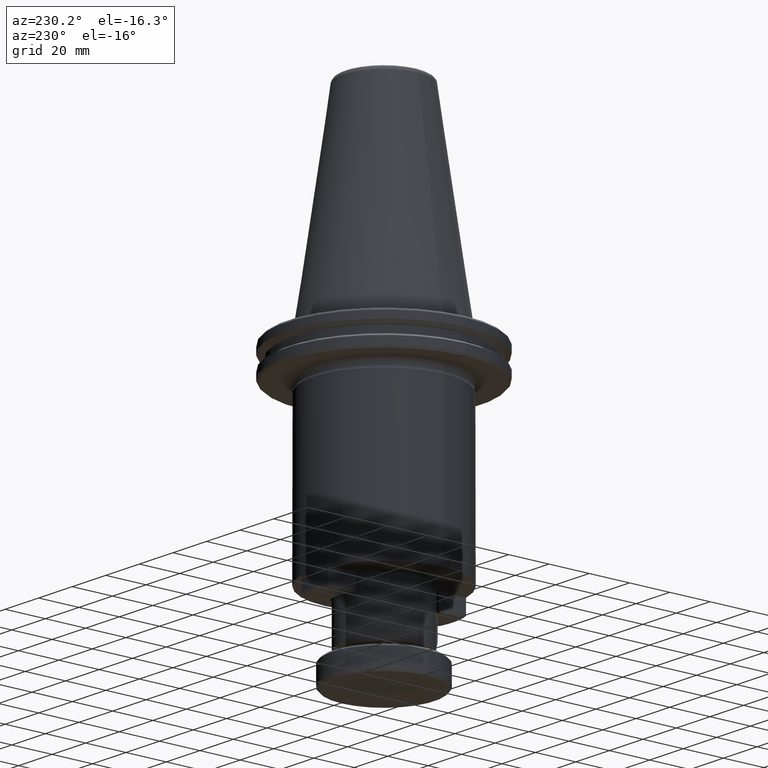
[diagram: clean part render]
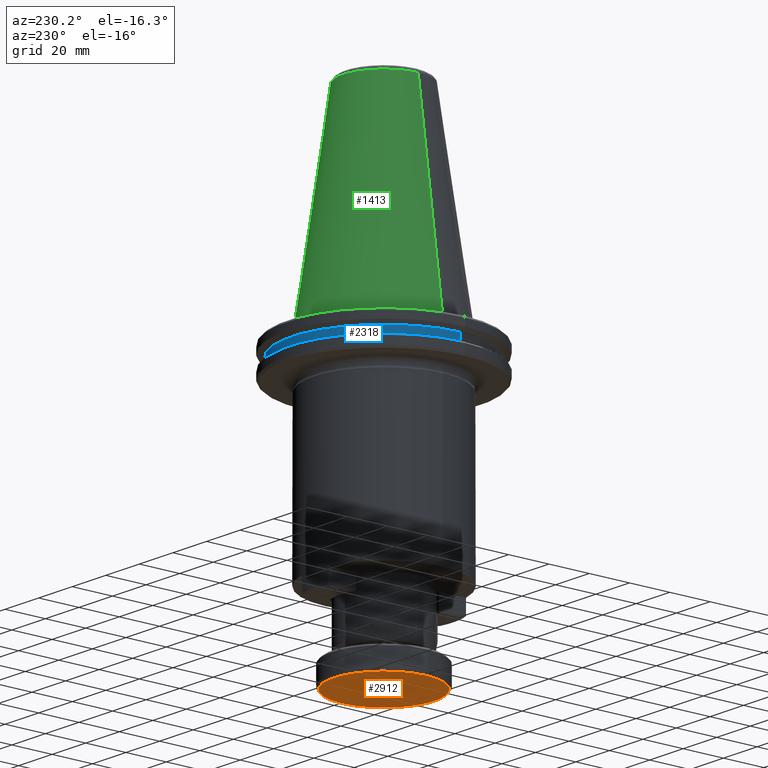
[diagram: same view with three faces highlighted in distinct colors, each labeled with its STEP entity id]
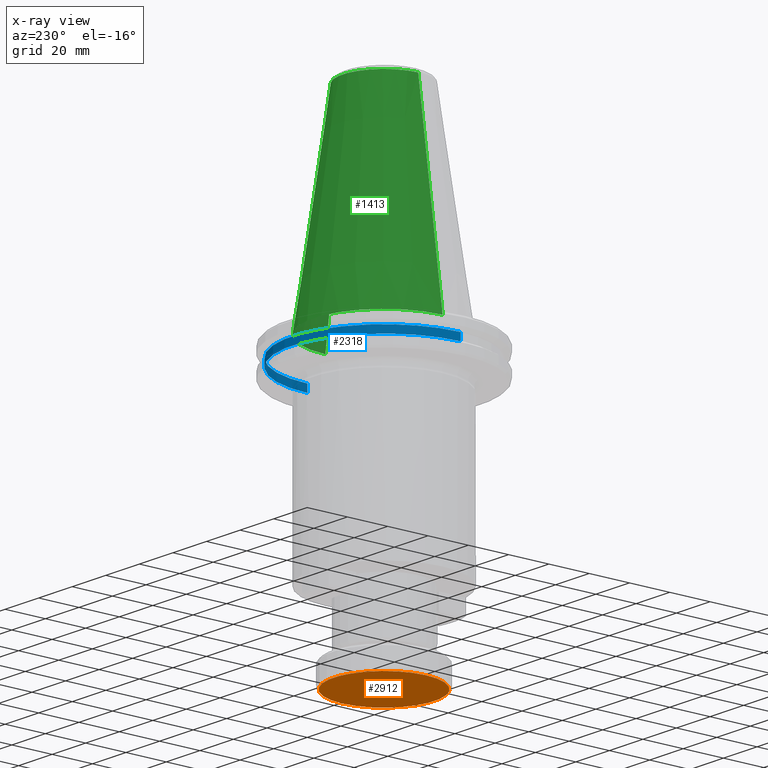
[diagram: x-ray of the same camera — body ghosted, the three highlighted faces saturated]
A machine part, auxiliary view with three faces highlighted in distinct colors.
The next image is the same camera in x-ray (body ghosted, the three faces saturated) — at least one of them is partly hidden behind the body in this view.
Their STEP definitions:

[orange] entity #2912 — the highlighted planar face has unit normal (0, 0, -1).
#72 = CARTESIAN_POINT ( 'NONE',  ( 122.1529126039459900, 190.0907862128019900, 82.80027880913704100 ) ) ;
#243 = EDGE_CURVE ( 'NONE', #854, #2097, #466, .T. ) ;
#304 = PLANE ( 'NONE',  #1427 ) ;
#344 = FACE_OUTER_BOUND ( 'NONE', #2317, .T. ) ;
#466 = CIRCLE ( 'NONE', #1056, 25.00000000000000700 ) ;
#538 = DIRECTION ( 'NONE',  ( 0.0000000000000000000, 0.0000000000000000000, -1.000000000000000000 ) ) ;
#718 = CARTESIAN_POINT ( 'NONE',  ( 147.1529126039459900, 190.0907862128019900, 82.80027880913704100 ) ) ;
#750 = CIRCLE ( 'NONE', #1909, 25.00000000000000700 ) ;
#768 = CARTESIAN_POINT ( 'NONE',  ( 122.1529126039459900, 190.0907862128019900, 82.80027880913704100 ) ) ;
#824 = ORIENTED_EDGE ( 'NONE', *, *, #243, .T. ) ;
#854 = VERTEX_POINT ( 'NONE', #938 ) ;
#897 = ORIENTED_EDGE ( 'NONE', *, *, #1965, .T. ) ;
#938 = CARTESIAN_POINT ( 'NONE',  ( 97.15291260394597800, 190.0907862128019900, 82.80027880913704100 ) ) ;
#965 = DIRECTION ( 'NONE',  ( -0.0000000000000000000, -0.0000000000000000000, -1.000000000000000000 ) ) ;
#1003 = DIRECTION ( 'NONE',  ( 1.000000000000000000, 0.0000000000000000000, 0.0000000000000000000 ) ) ;
#1056 = AXIS2_PLACEMENT_3D ( 'NONE', #768, #2406, #1003 ) ;
#1427 = AXIS2_PLACEMENT_3D ( 'NONE', #72, #538, #2153 ) ;
#1909 = AXIS2_PLACEMENT_3D ( 'NONE', #2358, #965, #2596 ) ;
#1965 = EDGE_CURVE ( 'NONE', #2097, #854, #750, .T. ) ;
#2097 = VERTEX_POINT ( 'NONE', #718 ) ;
#2153 = DIRECTION ( 'NONE',  ( -1.000000000000000000, 0.0000000000000000000, -0.0000000000000000000 ) ) ;
#2317 = EDGE_LOOP ( 'NONE', ( #897, #824 ) ) ;
#2358 = CARTESIAN_POINT ( 'NONE',  ( 122.1529126039459900, 190.0907862128019900, 82.80027880913704100 ) ) ;
#2406 = DIRECTION ( 'NONE',  ( -0.0000000000000000000, -0.0000000000000000000, -1.000000000000000000 ) ) ;
#2596 = DIRECTION ( 'NONE',  ( 1.000000000000000000, 0.0000000000000000000, 0.0000000000000000000 ) ) ;
#2912 = ADVANCED_FACE ( 'NONE', ( #344 ), #304, .T. ) ;

[blue] entity #2318 — the highlighted cylindrical surface (partial cylindrical patch) has radius 45.625 mm, axis along (-0, -0, -1).
#59 = AXIS2_PLACEMENT_3D ( 'NONE', #2175, #776, #2409 ) ;
#100 = VERTEX_POINT ( 'NONE', #786 ) ;
#120 = DIRECTION ( 'NONE',  ( -0.0000000000000000000, -0.0000000000000000000, -1.000000000000000000 ) ) ;
#379 = VERTEX_POINT ( 'NONE', #2730 ) ;
#518 = EDGE_CURVE ( 'NONE', #556, #379, #2807, .T. ) ;
#540 = ORIENTED_EDGE ( 'NONE', *, *, #2940, .F. ) ;
#556 = VERTEX_POINT ( 'NONE', #1717 ) ;
#650 = VERTEX_POINT ( 'NONE', #1810 ) ;
#657 = DIRECTION ( 'NONE',  ( -0.0000000000000000000, -0.0000000000000000000, -1.000000000000000000 ) ) ;
#695 = EDGE_LOOP ( 'NONE', ( #1582, #2519, #2712, #540 ) ) ;
#776 = DIRECTION ( 'NONE',  ( -0.0000000000000000000, -0.0000000000000000000, -1.000000000000000000 ) ) ;
#782 = CARTESIAN_POINT ( 'NONE',  ( 167.7779126039458800, 190.0907862128020700, 123.8002788125370400 ) ) ;
#786 = CARTESIAN_POINT ( 'NONE',  ( 76.52791260394606400, 190.0907862128020700, 210.8252788091370500 ) ) ;
#853 = AXIS2_PLACEMENT_3D ( 'NONE', #2204, #120, #2443 ) ;
#950 = VECTOR ( 'NONE', #657, 1000.000000000000000 ) ;
#1294 = CARTESIAN_POINT ( 'NONE',  ( 122.1529126039459800, 190.0907862128020700, 214.5752788091370500 ) ) ;
#1540 = DIRECTION ( 'NONE',  ( -1.000000000000000000, 0.0000000000000000000, 0.0000000000000000000 ) ) ;
#1571 = LINE ( 'NONE', #2281, #950 ) ;
#1574 = VECTOR ( 'NONE', #2185, 1000.000000000000000 ) ;
#1582 = ORIENTED_EDGE ( 'NONE', *, *, #2375, .T. ) ;
#1648 = AXIS2_PLACEMENT_3D ( 'NONE', #1294, #2916, #1540 ) ;
#1717 = CARTESIAN_POINT ( 'NONE',  ( 167.7779126039458800, 190.0907862128020700, 214.5752788091370500 ) ) ;
#1806 = EDGE_CURVE ( 'NONE', #100, #379, #2824, .T. ) ;
#1810 = CARTESIAN_POINT ( 'NONE',  ( 76.52791260394609200, 190.0907862128020700, 214.5752788091370500 ) ) ;
#2175 = CARTESIAN_POINT ( 'NONE',  ( 122.1529126039459800, 190.0907862128020700, 210.8252788091370500 ) ) ;
#2185 = DIRECTION ( 'NONE',  ( -0.0000000000000000000, -0.0000000000000000000, -1.000000000000000000 ) ) ;
#2204 = CARTESIAN_POINT ( 'NONE',  ( 122.1529126039459800, 190.0907862128020700, 123.8002788125370400 ) ) ;
#2281 = CARTESIAN_POINT ( 'NONE',  ( 76.52791260394607800, 190.0907862128020700, 123.8002788125370400 ) ) ;
#2318 = ADVANCED_FACE ( 'NONE', ( #2402 ), #2928, .T. ) ;
#2375 = EDGE_CURVE ( 'NONE', #650, #556, #2860, .T. ) ;
#2402 = FACE_OUTER_BOUND ( 'NONE', #695, .T. ) ;
#2409 = DIRECTION ( 'NONE',  ( -1.000000000000000000, 0.0000000000000000000, 0.0000000000000000000 ) ) ;
#2443 = DIRECTION ( 'NONE',  ( -1.000000000000000000, 0.0000000000000000000, 0.0000000000000000000 ) ) ;
#2519 = ORIENTED_EDGE ( 'NONE', *, *, #518, .T. ) ;
#2712 = ORIENTED_EDGE ( 'NONE', *, *, #1806, .F. ) ;
#2730 = CARTESIAN_POINT ( 'NONE',  ( 167.7779126039459100, 190.0907862128020700, 210.8252788091370500 ) ) ;
#2807 = LINE ( 'NONE', #782, #1574 ) ;
#2824 = CIRCLE ( 'NONE', #59, 45.62499999999991500 ) ;
#2860 = CIRCLE ( 'NONE', #1648, 45.62499999999988600 ) ;
#2916 = DIRECTION ( 'NONE',  ( -0.0000000000000000000, -0.0000000000000000000, -1.000000000000000000 ) ) ;
#2928 = CYLINDRICAL_SURFACE ( 'NONE', #853, 45.62499999999990100 ) ;
#2940 = EDGE_CURVE ( 'NONE', #650, #100, #1571, .T. ) ;

[green] entity #1413 — the highlighted conical surface has half-angle 8.297 deg.
#19 = CONICAL_SURFACE ( 'NONE', #1403, 20.39829213147531600, 0.1448138465302273600 ) ;
#32 = EDGE_CURVE ( 'NONE', #1320, #2059, #429, .T. ) ;
#85 = FACE_OUTER_BOUND ( 'NONE', #2516, .T. ) ;
#358 = DIRECTION ( 'NONE',  ( -0.0000000000000000000, -0.0000000000000000000, -1.000000000000000000 ) ) ;
#394 = VERTEX_POINT ( 'NONE', #1580 ) ;
#429 = CIRCLE ( 'NONE', #970, 34.92499999999994000 ) ;
#520 = DIRECTION ( 'NONE',  ( -0.0000000000000000000, -0.0000000000000000000, -1.000000000000000000 ) ) ;
#553 = CARTESIAN_POINT ( 'NONE',  ( 122.1529126039459800, 190.0907862128020700, 223.8002788091370400 ) ) ;
#684 = CARTESIAN_POINT ( 'NONE',  ( 142.5512047354212900, 190.0907862128020700, 323.4110493773521900 ) ) ;
#772 = DIRECTION ( 'NONE',  ( -1.000000000000000000, 0.0000000000000000000, 0.0000000000000000000 ) ) ;
#813 = EDGE_CURVE ( 'NONE', #2534, #2059, #2837, .T. ) ;
#921 = DIRECTION ( 'NONE',  ( 0.1443082272502952400, 1.767266085927029200E-017, -0.9895327864946552600 ) ) ;
#970 = AXIS2_PLACEMENT_3D ( 'NONE', #553, #2173, #772 ) ;
#987 = VECTOR ( 'NONE', #921, 1000.000000000000100 ) ;
#1043 = CIRCLE ( 'NONE', #1221, 20.39829213147531600 ) ;
#1221 = AXIS2_PLACEMENT_3D ( 'NONE', #1899, #520, #2131 ) ;
#1320 = VERTEX_POINT ( 'NONE', #1608 ) ;
#1382 = LINE ( 'NONE', #1951, #2469 ) ;
#1403 = AXIS2_PLACEMENT_3D ( 'NONE', #1731, #358, #2663 ) ;
#1413 = ADVANCED_FACE ( 'NONE', ( #85 ), #19, .T. ) ;
#1580 = CARTESIAN_POINT ( 'NONE',  ( 101.7546204724706600, 190.0907862128020700, 323.4110493773521900 ) ) ;
#1608 = CARTESIAN_POINT ( 'NONE',  ( 87.22791260394602400, 190.0907862128020700, 223.8002788091370400 ) ) ;
#1731 = CARTESIAN_POINT ( 'NONE',  ( 122.1529126039459800, 190.0907862128020700, 323.4110493773521900 ) ) ;
#1771 = ORIENTED_EDGE ( 'NONE', *, *, #2119, .T. ) ;
#1899 = CARTESIAN_POINT ( 'NONE',  ( 122.1529126039459800, 190.0907862128020700, 323.4110493773521900 ) ) ;
#1951 = CARTESIAN_POINT ( 'NONE',  ( 101.7546204724706600, 190.0907862128020700, 323.4110493773521900 ) ) ;
#2014 = ORIENTED_EDGE ( 'NONE', *, *, #32, .F. ) ;
#2059 = VERTEX_POINT ( 'NONE', #2154 ) ;
#2119 = EDGE_CURVE ( 'NONE', #394, #2534, #1043, .T. ) ;
#2131 = DIRECTION ( 'NONE',  ( -1.000000000000000000, 0.0000000000000000000, 0.0000000000000000000 ) ) ;
#2154 = CARTESIAN_POINT ( 'NONE',  ( 157.0779126039459500, 190.0907862128020700, 223.8002788091370400 ) ) ;
#2173 = DIRECTION ( 'NONE',  ( -0.0000000000000000000, -0.0000000000000000000, -1.000000000000000000 ) ) ;
#2188 = DIRECTION ( 'NONE',  ( -0.1443082272502952400, 0.0000000000000000000, -0.9895327864946552600 ) ) ;
#2280 = EDGE_CURVE ( 'NONE', #394, #1320, #1382, .T. ) ;
#2469 = VECTOR ( 'NONE', #2188, 1000.000000000000100 ) ;
#2516 = EDGE_LOOP ( 'NONE', ( #1771, #2720, #2014, #2894 ) ) ;
#2534 = VERTEX_POINT ( 'NONE', #2927 ) ;
#2663 = DIRECTION ( 'NONE',  ( -1.000000000000000000, 0.0000000000000000000, 0.0000000000000000000 ) ) ;
#2720 = ORIENTED_EDGE ( 'NONE', *, *, #813, .T. ) ;
#2837 = LINE ( 'NONE', #684, #987 ) ;
#2894 = ORIENTED_EDGE ( 'NONE', *, *, #2280, .F. ) ;
#2927 = CARTESIAN_POINT ( 'NONE',  ( 142.5512047354212700, 190.0907862128020700, 323.4110493773521900 ) ) ;